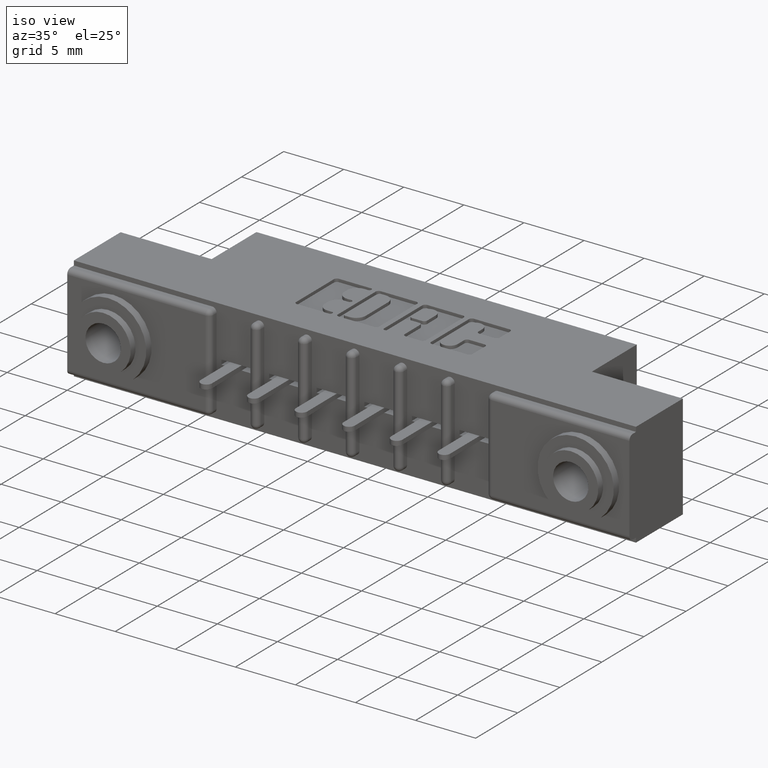
[diagram: clean part render]
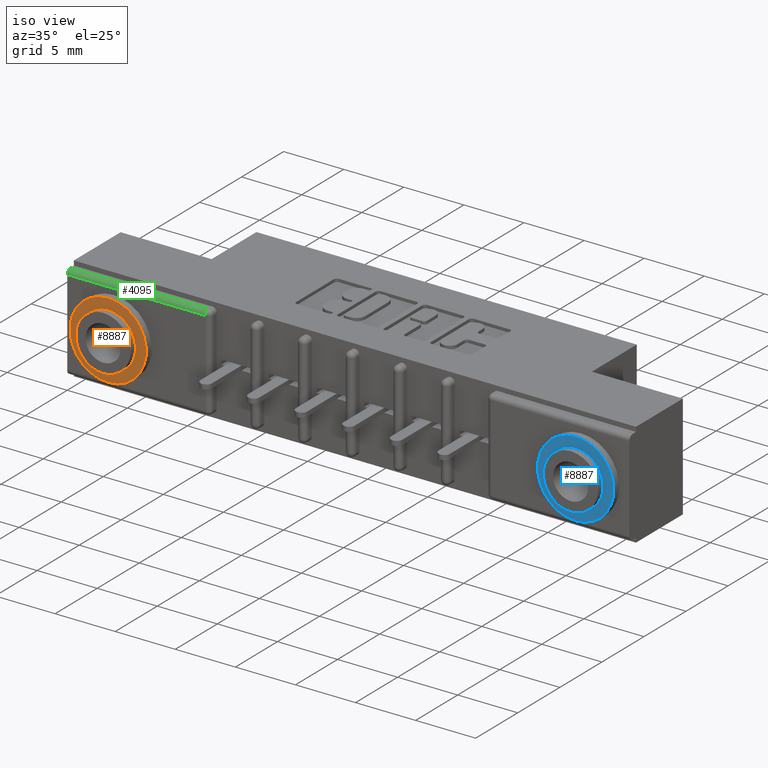
[diagram: same view with three faces highlighted in distinct colors, each labeled with its STEP entity id]
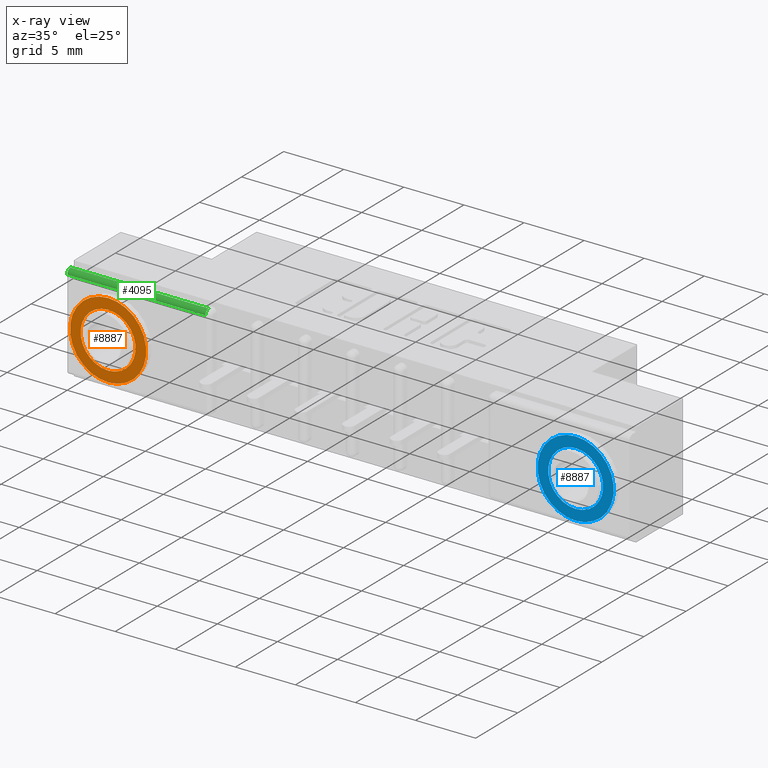
[diagram: x-ray of the same camera — body ghosted, the three highlighted faces saturated]
A machine part, iso view with three faces highlighted in distinct colors.
The next image is the same camera in x-ray (body ghosted, the three faces saturated) — at least one of them is partly hidden behind the body in this view.
Their STEP definitions:

[orange] entity #8887 — the highlighted planar face has unit normal (-0, -1, -0).
#53 = EDGE_LOOP ( 'NONE', ( #1543, #1552 ) ) ;
#228 = CARTESIAN_POINT ( 'NONE',  ( 0.0000000000000000000, 0.3049999999999998800, 0.0000000000000000000 ) ) ;
#1127 = CIRCLE ( 'NONE', #9195, 0.1250000000000000600 ) ;
#1353 = DIRECTION ( 'NONE',  ( -3.408749858497504800E-034, 0.0000000000000000000, 1.000000000000000000 ) ) ;
#1491 = ORIENTED_EDGE ( 'NONE', *, *, #8608, .T. ) ;
#1526 = ORIENTED_EDGE ( 'NONE', *, *, #9544, .T. ) ;
#1543 = ORIENTED_EDGE ( 'NONE', *, *, #10392, .T. ) ;
#1552 = ORIENTED_EDGE ( 'NONE', *, *, #9275, .T. ) ;
#1576 = AXIS2_PLACEMENT_3D ( 'NONE', #6284, #8685, #3759 ) ;
#1823 = CARTESIAN_POINT ( 'NONE',  ( 3.507581643331750100E-034, 0.3049999999999998800, -0.1250000000000000600 ) ) ;
#2013 = VERTEX_POINT ( 'NONE', #11079 ) ;
#2190 = FACE_OUTER_BOUND ( 'NONE', #53, .T. ) ;
#3249 = CIRCLE ( 'NONE', #4022, 0.1250000000000000600 ) ;
#3335 = VERTEX_POINT ( 'NONE', #4293 ) ;
#3759 = DIRECTION ( 'NONE',  ( -3.408749858497505200E-034, 7.095886083921892200E-051, 1.000000000000000000 ) ) ;
#3858 = DIRECTION ( 'NONE',  ( -2.465190328815661900E-032, 1.000000000000000000, 0.0000000000000000000 ) ) ;
#4022 = AXIS2_PLACEMENT_3D ( 'NONE', #228, #6788, #1353 ) ;
#4293 = CARTESIAN_POINT ( 'NONE',  ( 1.102182119232617900E-017, 0.3049999999999998800, -0.08999999999999999700 ) ) ;
#4355 = DIRECTION ( 'NONE',  ( -3.408749858497505600E-034, 0.0000000000000000000, 1.000000000000000000 ) ) ;
#4357 = DIRECTION ( 'NONE',  ( 2.465190328815661900E-032, -1.000000000000000000, -0.0000000000000000000 ) ) ;
#4377 = CARTESIAN_POINT ( 'NONE',  ( 0.0000000000000000000, 0.3049999999999998800, 0.0000000000000000000 ) ) ;
#5468 = PLANE ( 'NONE',  #1576 ) ;
#5565 = DIRECTION ( 'NONE',  ( 2.465190328815661900E-032, -1.000000000000000000, -0.0000000000000000000 ) ) ;
#6284 = CARTESIAN_POINT ( 'NONE',  ( 0.0000000000000000000, 0.3049999999999998800, 0.0000000000000000000 ) ) ;
#6665 = FACE_BOUND ( 'NONE', #8836, .T. ) ;
#6788 = DIRECTION ( 'NONE',  ( -2.465190328815661900E-032, 1.000000000000000000, 0.0000000000000000000 ) ) ;
#7827 = VERTEX_POINT ( 'NONE', #1823 ) ;
#8298 = VERTEX_POINT ( 'NONE', #9864 ) ;
#8608 = EDGE_CURVE ( 'NONE', #2013, #3335, #10996, .T. ) ;
#8685 = DIRECTION ( 'NONE',  ( -2.465190328815661900E-032, 1.000000000000000000, -7.095886083921900600E-051 ) ) ;
#8773 = CARTESIAN_POINT ( 'NONE',  ( 0.0000000000000000000, 0.3049999999999998800, 0.0000000000000000000 ) ) ;
#8836 = EDGE_LOOP ( 'NONE', ( #1491, #1526 ) ) ;
#8887 = ADVANCED_FACE ( 'NONE', ( #6665, #2190 ), #5468, .T. ) ;
#9195 = AXIS2_PLACEMENT_3D ( 'NONE', #8773, #3858, #9531 ) ;
#9275 = EDGE_CURVE ( 'NONE', #8298, #7827, #3249, .T. ) ;
#9531 = DIRECTION ( 'NONE',  ( -3.408749858497504800E-034, 0.0000000000000000000, 1.000000000000000000 ) ) ;
#9544 = EDGE_CURVE ( 'NONE', #3335, #2013, #11266, .T. ) ;
#9864 = CARTESIAN_POINT ( 'NONE',  ( 1.530808498934192100E-017, 0.3049999999999998800, 0.1250000000000000600 ) ) ;
#10308 = CARTESIAN_POINT ( 'NONE',  ( 0.0000000000000000000, 0.3049999999999998800, 0.0000000000000000000 ) ) ;
#10309 = AXIS2_PLACEMENT_3D ( 'NONE', #10308, #5565, #11097 ) ;
#10392 = EDGE_CURVE ( 'NONE', #7827, #8298, #1127, .T. ) ;
#10575 = AXIS2_PLACEMENT_3D ( 'NONE', #4377, #4357, #4355 ) ;
#10996 = CIRCLE ( 'NONE', #10575, 0.08999999999999999700 ) ;
#11079 = CARTESIAN_POINT ( 'NONE',  ( -3.067874872647754800E-035, 0.3049999999999998800, 0.08999999999999999700 ) ) ;
#11097 = DIRECTION ( 'NONE',  ( -3.408749858497505600E-034, 0.0000000000000000000, 1.000000000000000000 ) ) ;
#11266 = CIRCLE ( 'NONE', #10309, 0.08999999999999999700 ) ;

[blue] entity #8887 — the highlighted planar face has unit normal (0, -1, 0).
#53 = EDGE_LOOP ( 'NONE', ( #1543, #1552 ) ) ;
#228 = CARTESIAN_POINT ( 'NONE',  ( 0.0000000000000000000, 0.3049999999999998800, 0.0000000000000000000 ) ) ;
#1127 = CIRCLE ( 'NONE', #9195, 0.1250000000000000600 ) ;
#1353 = DIRECTION ( 'NONE',  ( -3.408749858497504800E-034, 0.0000000000000000000, 1.000000000000000000 ) ) ;
#1491 = ORIENTED_EDGE ( 'NONE', *, *, #8608, .T. ) ;
#1526 = ORIENTED_EDGE ( 'NONE', *, *, #9544, .T. ) ;
#1543 = ORIENTED_EDGE ( 'NONE', *, *, #10392, .T. ) ;
#1552 = ORIENTED_EDGE ( 'NONE', *, *, #9275, .T. ) ;
#1576 = AXIS2_PLACEMENT_3D ( 'NONE', #6284, #8685, #3759 ) ;
#1823 = CARTESIAN_POINT ( 'NONE',  ( 3.507581643331750100E-034, 0.3049999999999998800, -0.1250000000000000600 ) ) ;
#2013 = VERTEX_POINT ( 'NONE', #11079 ) ;
#2190 = FACE_OUTER_BOUND ( 'NONE', #53, .T. ) ;
#3249 = CIRCLE ( 'NONE', #4022, 0.1250000000000000600 ) ;
#3335 = VERTEX_POINT ( 'NONE', #4293 ) ;
#3759 = DIRECTION ( 'NONE',  ( -3.408749858497505200E-034, 7.095886083921892200E-051, 1.000000000000000000 ) ) ;
#3858 = DIRECTION ( 'NONE',  ( -2.465190328815661900E-032, 1.000000000000000000, 0.0000000000000000000 ) ) ;
#4022 = AXIS2_PLACEMENT_3D ( 'NONE', #228, #6788, #1353 ) ;
#4293 = CARTESIAN_POINT ( 'NONE',  ( 1.102182119232617900E-017, 0.3049999999999998800, -0.08999999999999999700 ) ) ;
#4355 = DIRECTION ( 'NONE',  ( -3.408749858497505600E-034, 0.0000000000000000000, 1.000000000000000000 ) ) ;
#4357 = DIRECTION ( 'NONE',  ( 2.465190328815661900E-032, -1.000000000000000000, -0.0000000000000000000 ) ) ;
#4377 = CARTESIAN_POINT ( 'NONE',  ( 0.0000000000000000000, 0.3049999999999998800, 0.0000000000000000000 ) ) ;
#5468 = PLANE ( 'NONE',  #1576 ) ;
#5565 = DIRECTION ( 'NONE',  ( 2.465190328815661900E-032, -1.000000000000000000, -0.0000000000000000000 ) ) ;
#6284 = CARTESIAN_POINT ( 'NONE',  ( 0.0000000000000000000, 0.3049999999999998800, 0.0000000000000000000 ) ) ;
#6665 = FACE_BOUND ( 'NONE', #8836, .T. ) ;
#6788 = DIRECTION ( 'NONE',  ( -2.465190328815661900E-032, 1.000000000000000000, 0.0000000000000000000 ) ) ;
#7827 = VERTEX_POINT ( 'NONE', #1823 ) ;
#8298 = VERTEX_POINT ( 'NONE', #9864 ) ;
#8608 = EDGE_CURVE ( 'NONE', #2013, #3335, #10996, .T. ) ;
#8685 = DIRECTION ( 'NONE',  ( -2.465190328815661900E-032, 1.000000000000000000, -7.095886083921900600E-051 ) ) ;
#8773 = CARTESIAN_POINT ( 'NONE',  ( 0.0000000000000000000, 0.3049999999999998800, 0.0000000000000000000 ) ) ;
#8836 = EDGE_LOOP ( 'NONE', ( #1491, #1526 ) ) ;
#8887 = ADVANCED_FACE ( 'NONE', ( #6665, #2190 ), #5468, .T. ) ;
#9195 = AXIS2_PLACEMENT_3D ( 'NONE', #8773, #3858, #9531 ) ;
#9275 = EDGE_CURVE ( 'NONE', #8298, #7827, #3249, .T. ) ;
#9531 = DIRECTION ( 'NONE',  ( -3.408749858497504800E-034, 0.0000000000000000000, 1.000000000000000000 ) ) ;
#9544 = EDGE_CURVE ( 'NONE', #3335, #2013, #11266, .T. ) ;
#9864 = CARTESIAN_POINT ( 'NONE',  ( 1.530808498934192100E-017, 0.3049999999999998800, 0.1250000000000000600 ) ) ;
#10308 = CARTESIAN_POINT ( 'NONE',  ( 0.0000000000000000000, 0.3049999999999998800, 0.0000000000000000000 ) ) ;
#10309 = AXIS2_PLACEMENT_3D ( 'NONE', #10308, #5565, #11097 ) ;
#10392 = EDGE_CURVE ( 'NONE', #7827, #8298, #1127, .T. ) ;
#10575 = AXIS2_PLACEMENT_3D ( 'NONE', #4377, #4357, #4355 ) ;
#10996 = CIRCLE ( 'NONE', #10575, 0.08999999999999999700 ) ;
#11079 = CARTESIAN_POINT ( 'NONE',  ( -3.067874872647754800E-035, 0.3049999999999998800, 0.08999999999999999700 ) ) ;
#11097 = DIRECTION ( 'NONE',  ( -3.408749858497505600E-034, 0.0000000000000000000, 1.000000000000000000 ) ) ;
#11266 = CIRCLE ( 'NONE', #10309, 0.08999999999999999700 ) ;

[green] entity #4095 — the highlighted cylindrical surface (edge-blend (fillet) strip) has radius 0.381 mm, axis along (1, 0, 0).
#46 = ORIENTED_EDGE ( 'NONE', *, *, #3458, .F. ) ;
#251 = DIRECTION ( 'NONE',  ( -1.000000000000000000, 0.0000000000000000000, 0.0000000000000000000 ) ) ;
#486 = ORIENTED_EDGE ( 'NONE', *, *, #1540, .T. ) ;
#692 = ORIENTED_EDGE ( 'NONE', *, *, #5521, .F. ) ;
#774 = CARTESIAN_POINT ( 'NONE',  ( 0.4530000000000001800, 0.0000000000000000000, -0.02999999999999995400 ) ) ;
#852 = VECTOR ( 'NONE', #4634, 39.37007874015748100 ) ;
#1256 = EDGE_CURVE ( 'NONE', #7309, #7266, #8622, .T. ) ;
#1300 = VECTOR ( 'NONE', #251, 39.37007874015748100 ) ;
#1540 = EDGE_CURVE ( 'NONE', #6000, #7622, #6764, .T. ) ;
#2460 = DIRECTION ( 'NONE',  ( -1.000000000000000000, 0.0000000000000000000, -0.0000000000000000000 ) ) ;
#2468 = FACE_OUTER_BOUND ( 'NONE', #9391, .T. ) ;
#2898 = CARTESIAN_POINT ( 'NONE',  ( 0.0000000000000000000, 0.01499999999999999900, -0.02999999999999995400 ) ) ;
#3458 = EDGE_CURVE ( 'NONE', #7266, #7622, #5892, .T. ) ;
#3995 = LINE ( 'NONE', #4503, #1300 ) ;
#4095 = ADVANCED_FACE ( 'NONE', ( #2468 ), #6881, .T. ) ;
#4203 = CARTESIAN_POINT ( 'NONE',  ( 1.842000000000000700, 0.01499999999999999900, -0.01499999999999997700 ) ) ;
#4302 = CARTESIAN_POINT ( 'NONE',  ( 0.4530000000000001800, 0.01499999999999999900, -0.02999999999999995400 ) ) ;
#4503 = CARTESIAN_POINT ( 'NONE',  ( 0.0000000000000000000, 0.0000000000000000000, -0.02999999999999995400 ) ) ;
#4634 = DIRECTION ( 'NONE',  ( 1.000000000000000000, -0.0000000000000000000, -0.0000000000000000000 ) ) ;
#5380 = DIRECTION ( 'NONE',  ( 1.000000000000000000, 0.0000000000000000000, 0.0000000000000000000 ) ) ;
#5382 = ORIENTED_EDGE ( 'NONE', *, *, #1256, .F. ) ;
#5521 = EDGE_CURVE ( 'NONE', #6000, #7309, #3995, .T. ) ;
#5554 = CARTESIAN_POINT ( 'NONE',  ( 0.4530000000000003500, 0.01499999999999999900, -0.01499999999999997700 ) ) ;
#5892 = LINE ( 'NONE', #4203, #852 ) ;
#6000 = VERTEX_POINT ( 'NONE', #774 ) ;
#6764 = CIRCLE ( 'NONE', #8054, 0.01500000000000000300 ) ;
#6881 = CYLINDRICAL_SURFACE ( 'NONE', #9148, 0.01500000000000000300 ) ;
#7266 = VERTEX_POINT ( 'NONE', #10864 ) ;
#7309 = VERTEX_POINT ( 'NONE', #9792 ) ;
#7393 = DIRECTION ( 'NONE',  ( -1.000000000000000000, -0.0000000000000000000, -0.0000000000000000000 ) ) ;
#7622 = VERTEX_POINT ( 'NONE', #5554 ) ;
#8054 = AXIS2_PLACEMENT_3D ( 'NONE', #4302, #7393, #9374 ) ;
#8622 = CIRCLE ( 'NONE', #9863, 0.01500000000000000300 ) ;
#9148 = AXIS2_PLACEMENT_3D ( 'NONE', #10047, #5380, #10152 ) ;
#9374 = DIRECTION ( 'NONE',  ( 0.0000000000000000000, 8.537024980200820800E-016, -1.000000000000000000 ) ) ;
#9391 = EDGE_LOOP ( 'NONE', ( #692, #486, #46, #5382 ) ) ;
#9792 = CARTESIAN_POINT ( 'NONE',  ( 0.0000000000000000000, 0.0000000000000000000, -0.02999999999999995400 ) ) ;
#9863 = AXIS2_PLACEMENT_3D ( 'NONE', #2898, #2460, #10128 ) ;
#10047 = CARTESIAN_POINT ( 'NONE',  ( 0.0000000000000000000, 0.01499999999999999900, -0.02999999999999995400 ) ) ;
#10128 = DIRECTION ( 'NONE',  ( 0.0000000000000000000, 8.537024980200820800E-016, -1.000000000000000000 ) ) ;
#10152 = DIRECTION ( 'NONE',  ( 0.0000000000000000000, 0.0000000000000000000, -1.000000000000000000 ) ) ;
#10864 = CARTESIAN_POINT ( 'NONE',  ( 0.0000000000000000000, 0.01499999999999999900, -0.01499999999999997700 ) ) ;